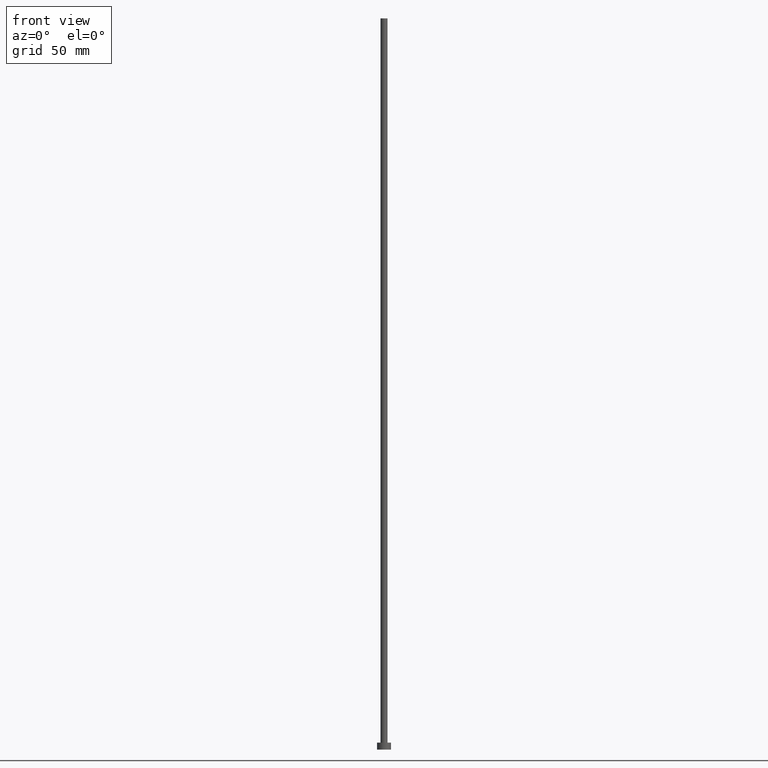
[diagram: clean part render]
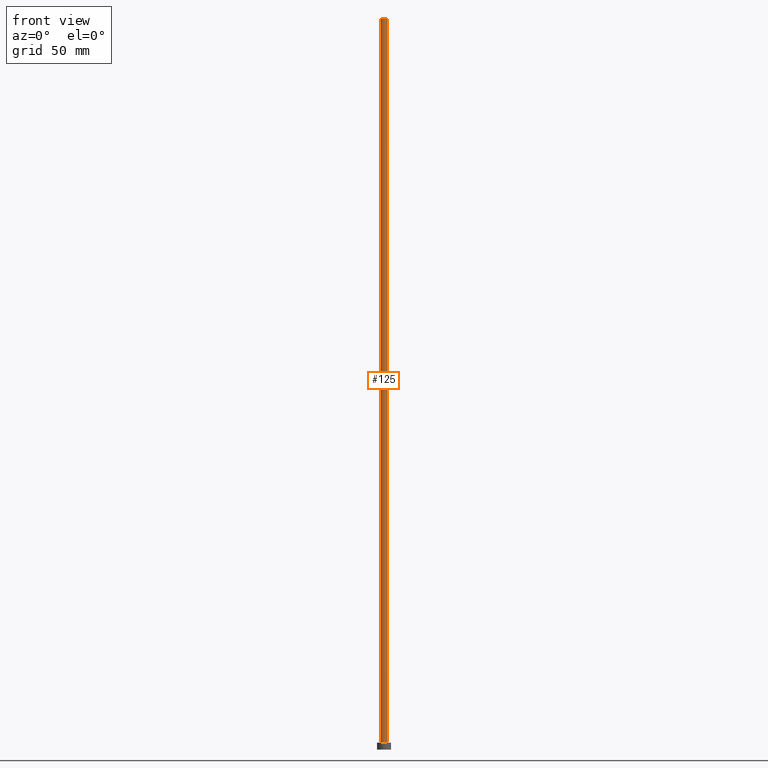
[diagram: same view with one face highlighted and labeled with its STEP entity id]
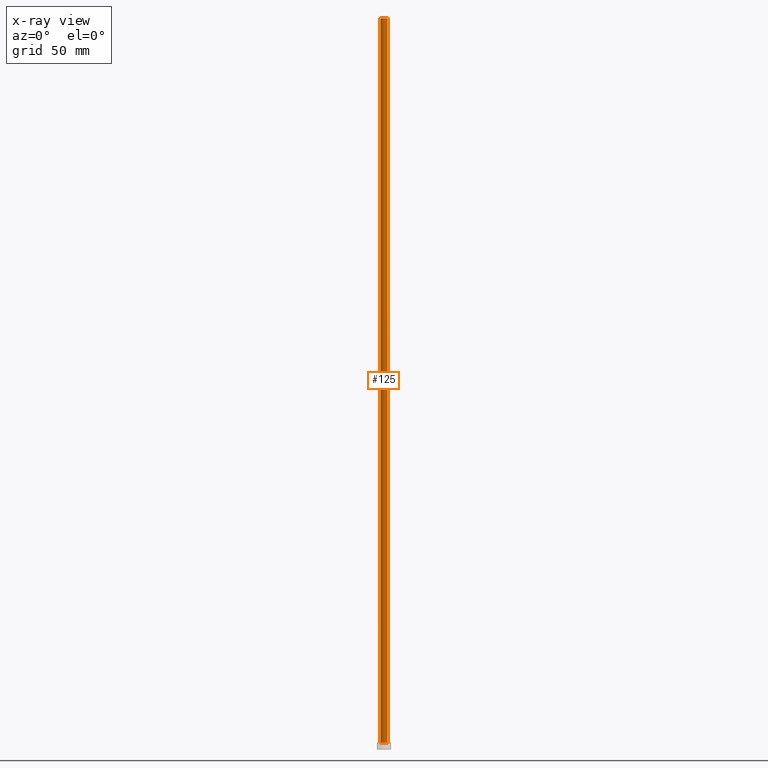
[diagram: x-ray of the same camera — body ghosted, the highlighted face saturated]
A machine part, front view. The second image highlights one B-rep face of the part: STEP entity #125.
The next image is the same camera in x-ray: the body ghosted, the highlighted face saturated — about 0% of this face is hidden behind the body in this view.
In plain terms, the highlighted cylindrical surface (edge-blend (fillet) strip) has radius 1.5 mm, axis along (-0, -0, -1).
Its self-contained STEP definition (entity closure, byte-faithful):
#7 = AXIS2_PLACEMENT_3D ( 'NONE', #161, #183, #185 ) ;
#10 = CARTESIAN_POINT ( 'NONE',  ( 1.500000000000000222, 1.836970198721030181E-16, 315.0000000000000000 ) ) ;
#37 = DIRECTION ( 'NONE',  ( -0.000000000000000000, -0.000000000000000000, -1.000000000000000000 ) ) ;
#39 = CARTESIAN_POINT ( 'NONE',  ( -1.500000000000000222, 0.000000000000000000, 315.0000000000000000 ) ) ;
#48 = EDGE_CURVE ( 'NONE', #215, #178, #120, .T. ) ;
#54 = DIRECTION ( 'NONE',  ( 1.000000000000000000, 0.000000000000000000, 0.000000000000000000 ) ) ;
#57 = EDGE_CURVE ( 'NONE', #178, #224, #76, .T. ) ;
#60 = EDGE_CURVE ( 'NONE', #215, #135, #140, .T. ) ;
#76 = LINE ( 'NONE', #126, #114 ) ;
#77 = AXIS2_PLACEMENT_3D ( 'NONE', #247, #232, #95 ) ;
#79 = AXIS2_PLACEMENT_3D ( 'NONE', #146, #186, #54 ) ;
#84 = ORIENTED_EDGE ( 'NONE', *, *, #57, .F. ) ;
#95 = DIRECTION ( 'NONE',  ( -1.000000000000000000, 0.000000000000000000, 0.000000000000000000 ) ) ;
#96 = EDGE_CURVE ( 'NONE', #135, #224, #235, .T. ) ;
#114 = VECTOR ( 'NONE', #242, 1000.000000000000000 ) ;
#120 = CIRCLE ( 'NONE', #7, 1.500000000000000222 ) ;
#121 = ORIENTED_EDGE ( 'NONE', *, *, #48, .F. ) ;
#125 = ADVANCED_FACE ( 'NONE', ( #163 ), #148, .T. ) ;
#126 = CARTESIAN_POINT ( 'NONE',  ( 1.500000000000000222, 1.836970198721030181E-16, 315.0000000000000000 ) ) ;
#135 = VERTEX_POINT ( 'NONE', #219 ) ;
#140 = LINE ( 'NONE', #142, #143 ) ;
#142 = CARTESIAN_POINT ( 'NONE',  ( -1.500000000000000222, 0.000000000000000000, 315.0000000000000000 ) ) ;
#143 = VECTOR ( 'NONE', #37, 1000.000000000000000 ) ;
#146 = CARTESIAN_POINT ( 'NONE',  ( 0.000000000000000000, 0.000000000000000000, 3.000000000000000000 ) ) ;
#148 = CYLINDRICAL_SURFACE ( 'NONE', #77, 1.500000000000000222 ) ;
#151 = CARTESIAN_POINT ( 'NONE',  ( 1.500000000000000222, 1.836970198721030181E-16, 3.000000000000000000 ) ) ;
#161 = CARTESIAN_POINT ( 'NONE',  ( 0.000000000000000000, 0.000000000000000000, 315.0000000000000000 ) ) ;
#163 = FACE_OUTER_BOUND ( 'NONE', #241, .T. ) ;
#178 = VERTEX_POINT ( 'NONE', #10 ) ;
#181 = ORIENTED_EDGE ( 'NONE', *, *, #96, .T. ) ;
#183 = DIRECTION ( 'NONE',  ( 0.000000000000000000, 0.000000000000000000, 1.000000000000000000 ) ) ;
#185 = DIRECTION ( 'NONE',  ( 1.000000000000000000, 0.000000000000000000, 0.000000000000000000 ) ) ;
#186 = DIRECTION ( 'NONE',  ( 0.000000000000000000, 0.000000000000000000, 1.000000000000000000 ) ) ;
#201 = ORIENTED_EDGE ( 'NONE', *, *, #60, .T. ) ;
#215 = VERTEX_POINT ( 'NONE', #39 ) ;
#219 = CARTESIAN_POINT ( 'NONE',  ( -1.500000000000000222, 0.000000000000000000, 3.000000000000000000 ) ) ;
#224 = VERTEX_POINT ( 'NONE', #151 ) ;
#232 = DIRECTION ( 'NONE',  ( -0.000000000000000000, -0.000000000000000000, -1.000000000000000000 ) ) ;
#235 = CIRCLE ( 'NONE', #79, 1.500000000000000222 ) ;
#241 = EDGE_LOOP ( 'NONE', ( #84, #121, #201, #181 ) ) ;
#242 = DIRECTION ( 'NONE',  ( -0.000000000000000000, -0.000000000000000000, -1.000000000000000000 ) ) ;
#247 = CARTESIAN_POINT ( 'NONE',  ( 0.000000000000000000, 0.000000000000000000, 315.0000000000000000 ) ) ;